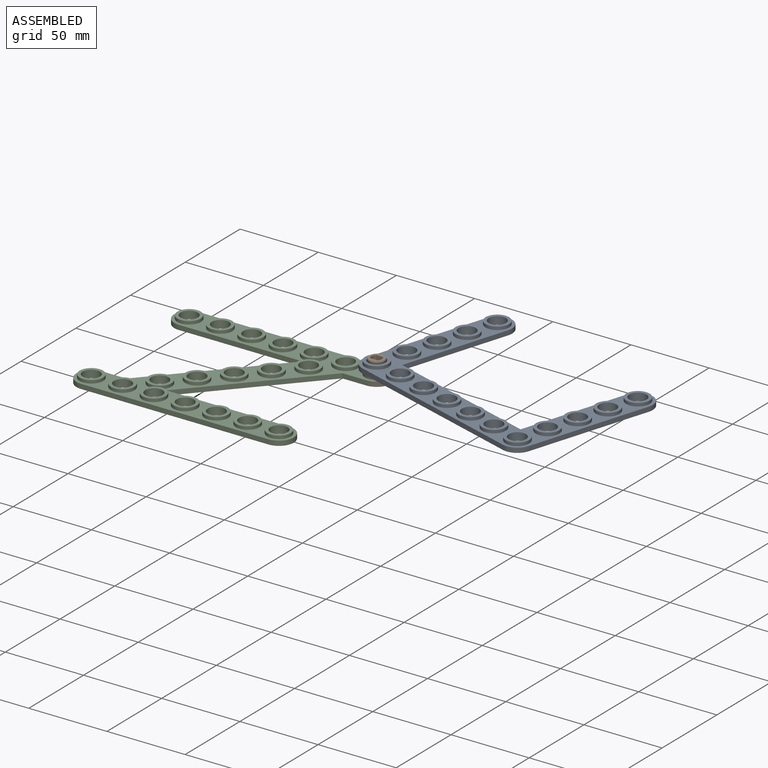
[diagram: assembled view]
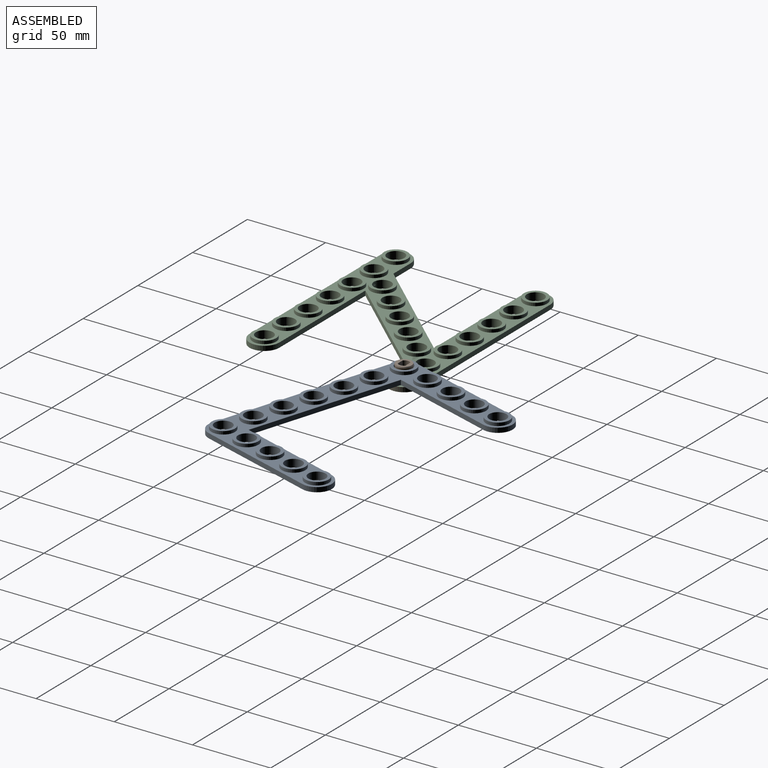
[diagram: assembled view, second angle]
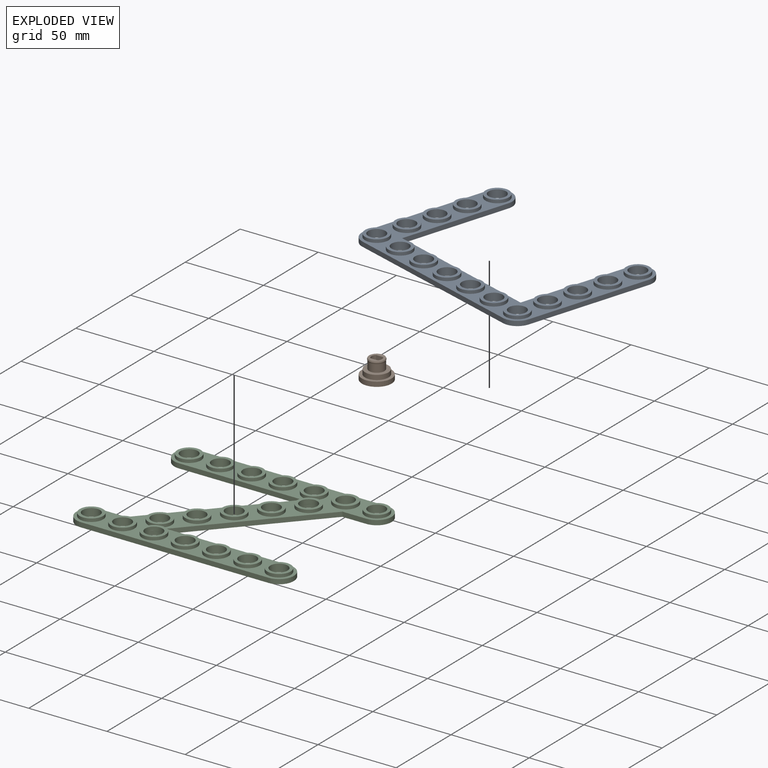
[diagram: exploded view]
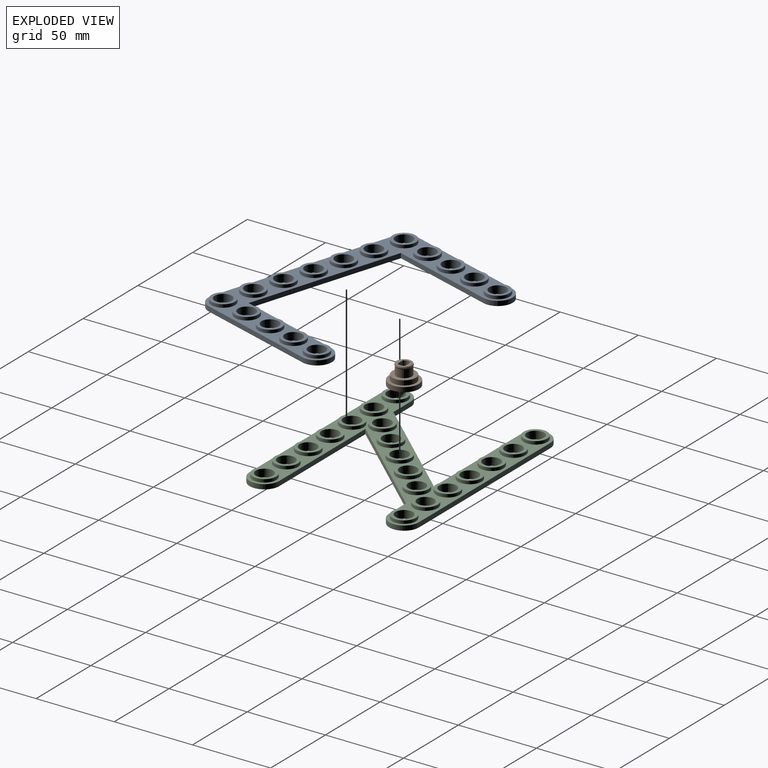
[diagram: exploded view, second angle]
ASSEMBLY  parts=3 mates=2
PART A: 57 faces, bbox 139x99x5 mm
  f0: cylinder r=9.5mm len=9.5mm, axis (0,0,-1), area 44.8mm2, adj f9,f11,f12,f46
  f1: plane 101x3mm, normal (0,1,0), area 303mm2, adj f11,f12,f31,f43
  f2: cylinder r=9.5mm len=9.5mm, axis (0,0,-1), area 44.8mm2, adj f9,f11,f12,f28
  f3: cylinder r=5.5mm len=11mm, axis (0,0,-1), area 172.8mm2, adj f12,f24
  f4: cylinder r=5.5mm len=11mm, axis (0,0,-1), area 172.8mm2, adj f12,f22
  f5: cylinder r=5.5mm len=11mm, axis (0,0,-1), area 172.8mm2, adj f12,f20
  f6: cylinder r=5.5mm len=11mm, axis (0,0,-1), area 172.8mm2, adj f12,f18
  f7: cylinder r=5.5mm len=11mm, axis (0,0,-1), area 172.8mm2, adj f12,f16
  f8: cylinder r=5.5mm len=11mm, axis (0,0,-1), area 172.8mm2, adj f12,f14
  f9: plane 120x3mm, normal (0,-1,0), area 360mm2, adj f0,f2,f11,f12
  f10: cylinder r=5.5mm len=11mm, axis (0,0,-1), area 172.8mm2, adj f12,f26
  f11: plane 139x99mm, normal (0,0,1), area 2914.1mm2, adj f0,f1,f2,f9,f13,f15,f17,f19
  f12: plane 139x99mm, normal (0,0,-1), area 4139.3mm2, adj f0,f1,f2,f3,f4,f5,f6,f7
  f13: cylinder r=7.5mm len=15mm, axis (0,0,-1), area 94.2mm2, adj f11,f14
  f14: plane 15x15mm, normal (0,0,1), area 81.7mm2, adj f8,f13
  f15: cylinder r=7.5mm len=15mm, axis (0,0,-1), area 94.2mm2, adj f11,f16
  f16: plane 15x15mm, normal (0,0,1), area 81.7mm2, adj f7,f15
  f17: cylinder r=7.5mm len=15mm, axis (0,0,-1), area 94.2mm2, adj f11,f18
  f18: plane 15x15mm, normal (0,0,1), area 81.7mm2, adj f6,f17
  f19: cylinder r=7.5mm len=15mm, axis (0,0,-1), area 94.2mm2, adj f11,f20
  f20: plane 15x15mm, normal (0,0,1), area 81.7mm2, adj f5,f19
  f21: cylinder r=7.5mm len=15mm, axis (0,0,-1), area 94.2mm2, adj f11,f22
  f22: plane 15x15mm, normal (0,0,1), area 81.7mm2, adj f4,f21
  f23: cylinder r=7.5mm len=15mm, axis (0,0,-1), area 94.2mm2, adj f11,f24
  f24: plane 15x15mm, normal (0,0,1), area 81.7mm2, adj f3,f23
  f25: cylinder r=7.5mm len=15mm, axis (0,0,-1), area 94.2mm2, adj f11,f26
  f26: plane 15x15mm, normal (0,0,1), area 81.7mm2, adj f10,f25
  f27: cylinder r=9.5mm len=19mm, axis (0,0,-1), area 89.5mm2, adj f11,f12,f28,f31
  f28: plane 80x3mm, normal (-1,0,0), area 240mm2, adj f2,f11,f12,f27
  f29: cylinder r=5.5mm len=11mm, axis (0,0,-1), area 172.8mm2, adj f12,f36
  f30: cylinder r=5.5mm len=11mm, axis (0,0,-1), area 172.8mm2, adj f12,f34
  f31: plane 70.5x3mm, normal (1,0,0), area 211.5mm2, adj f1,f11,f12,f27
  f32: cylinder r=5.5mm len=11mm, axis (0,0,-1), area 172.8mm2, adj f12,f38
  f33: cylinder r=7.5mm len=15mm, axis (0,0,-1), area 94.2mm2, adj f11,f34
  f34: plane 15x15mm, normal (0,0,1), area 81.7mm2, adj f30,f33
  f35: cylinder r=7.5mm len=15mm, axis (0,0,-1), area 94.2mm2, adj f11,f36
  f36: plane 15x15mm, normal (0,0,1), area 81.7mm2, adj f29,f35
  f37: cylinder r=7.5mm len=15mm, axis (0,0,-1), area 94.2mm2, adj f11,f38
  f38: plane 15x15mm, normal (0,0,1), area 81.7mm2, adj f32,f37
  f39: cylinder r=5.5mm len=11mm, axis (0,0,-1), area 172.8mm2, adj f12,f41
  f40: cylinder r=7.5mm len=15mm, axis (0,0,-1), area 94.2mm2, adj f11,f41
  f41: plane 15x15mm, normal (0,0,1), area 81.7mm2, adj f39,f40
  f42: cylinder r=9.5mm len=19mm, axis (0,0,-1), area 89.5mm2, adj f11,f12,f43,f46
  f43: plane 70.5x3mm, normal (-1,0,0), area 211.5mm2, adj f1,f11,f12,f42
  f44: cylinder r=5.5mm len=11mm, axis (0,0,-1), area 172.8mm2, adj f12,f51
  f45: cylinder r=5.5mm len=11mm, axis (0,0,-1), area 172.8mm2, adj f12,f49
  f46: plane 80x3mm, normal (1,0,0), area 240mm2, adj f0,f11,f12,f42
  f47: cylinder r=5.5mm len=11mm, axis (0,0,-1), area 172.8mm2, adj f12,f53
  f48: cylinder r=7.5mm len=15mm, axis (0,0,-1), area 94.2mm2, adj f11,f49
  f49: plane 15x15mm, normal (0,0,1), area 81.7mm2, adj f45,f48
  f50: cylinder r=7.5mm len=15mm, axis (0,0,-1), area 94.2mm2, adj f11,f51
  f51: plane 15x15mm, normal (0,0,1), area 81.7mm2, adj f44,f50
  f52: cylinder r=7.5mm len=15mm, axis (0,0,-1), area 94.2mm2, adj f11,f53
  f53: plane 15x15mm, normal (0,0,1), area 81.7mm2, adj f47,f52
  f54: cylinder r=5.5mm len=11mm, axis (0,0,-1), area 172.8mm2, adj f12,f56
  f55: cylinder r=7.5mm len=15mm, axis (0,0,-1), area 94.2mm2, adj f11,f56
  f56: plane 15x15mm, normal (0,0,1), area 81.7mm2, adj f54,f55
PART B: 13 faces, bbox 19x19x12.5 mm
  f0: cylinder r=3.35mm len=12.5mm, axis (0,0,-1), area 68.7mm2, adj f1,f4,f6,f10
  f1: plane 12.5x4.57mm, normal (0,1,0), area 57.1mm2, adj f0,f2,f6,f10
  f2: cylinder r=3.35mm len=12.5mm, axis (0,0,-1), area 68.7mm2, adj f1,f4,f6,f10
  f3: cylinder r=9.5mm len=19mm, axis (0,0,-1), area 179.1mm2, adj f5,f6
  f4: plane 12.5x4.57mm, normal (0,-1,0), area 57.1mm2, adj f0,f2,f6,f10
  f5: plane 19x19mm, normal (0,0,1), area 106.8mm2, adj f3,f7
  f6: plane 19x19mm, normal (0,0,-1), area 253.9mm2, adj f0,f1,f2,f3,f4
  f7: cylinder r=7.5mm len=15mm, axis (0,0,-1), area 141.4mm2, adj f5,f8
  f8: plane 15x15mm, normal (0,0,1), area 101.3mm2, adj f7,f9
  f9: cylinder r=4.9mm len=9.8mm, axis (0,0,-1), area 153.9mm2, adj f8,f11
  f10: plane 9.8x9.8mm, normal (0,0,1), area 45.8mm2, adj f0,f1,f2,f4,f12
  f11: cone r=5.15mm half-angle=18.4deg, axis (0,0,1), area 25mm2, adj f9,f12
  f12: cone r=4.9mm half-angle=18.4deg, axis (0,0,-1), area 25mm2, adj f10,f11
PART C: 77 faces, bbox 139x108.3x5 mm
  f0: plane 78.66x3mm, normal (0,1,0), area 236mm2, adj f4,f14,f15,f74
  f1: plane 15.77x3mm, normal (0,1,0), area 47.3mm2, adj f6,f14,f15,f73
  f2: cylinder r=5.5mm len=11mm, axis (0,0,-1), area 165.3mm2, adj f15,f21,f75,f76
  f3: plane 2.47x0.14mm, normal (0,0,1), area 0.2mm2, adj f5,f67
  f4: cylinder r=9.5mm len=19mm, axis (0,0,-1), area 89.5mm2, adj f0,f12,f14,f15
  f5: plane 3x2.47mm, normal (0,1,0), area 7.4mm2, adj f3,f15,f67
  f6: cylinder r=9.5mm len=19mm, axis (0,0,-1), area 89.5mm2, adj f1,f12,f14,f15
  f7: cylinder r=5.5mm len=11mm, axis (0,0,-1), area 172.8mm2, adj f15,f27
  f8: cylinder r=5.5mm len=11mm, axis (0,0,-1), area 172.8mm2, adj f15,f25
  f9: cylinder r=5.5mm len=11mm, axis (0,0,-1), area 172.8mm2, adj f15,f23
  f10: cylinder r=5.5mm len=11mm, axis (0,0,-1), area 172.8mm2, adj f15,f19
  f11: cylinder r=5.5mm len=11mm, axis (0,0,-1), area 172.8mm2, adj f15,f17
  f12: plane 120x3mm, normal (0,-1,0), area 360mm2, adj f4,f6,f14,f15
  f13: cylinder r=5.5mm len=11mm, axis (0,0,-1), area 172.8mm2, adj f15,f29
  f14: plane 139x108.3mm, normal (0,0,1), area 3562mm2, adj f0,f1,f4,f6,f12,f16,f18,f20
  f15: plane 139x108.3mm, normal (0,0,-1), area 5123.4mm2, adj f0,f1,f2,f4,f5,f6,f7,f8
  f16: cylinder r=7.5mm len=15mm, axis (0,0,-1), area 94.2mm2, adj f14,f17
  f17: plane 15x15mm, normal (0,0,1), area 81.7mm2, adj f11,f16
  f18: cylinder r=7.5mm len=15mm, axis (0,0,-1), area 94.2mm2, adj f14,f19
  f19: plane 15x15mm, normal (0,0,1), area 81.7mm2, adj f10,f18
  f20: cylinder r=7.5mm len=15mm, axis (0,0,-1), area 94.2mm2, adj f14,f21
  f21: plane 15x15mm, normal (0,0,1), area 81.7mm2, adj f2,f20
  f22: cylinder r=7.5mm len=15mm, axis (0,0,-1), area 94.2mm2, adj f14,f23
  f23: plane 15x15mm, normal (0,0,1), area 81.7mm2, adj f9,f22
  f24: cylinder r=7.5mm len=15mm, axis (0,0,-1), area 94.2mm2, adj f14,f25
  f25: plane 15x15mm, normal (0,0,1), area 81.7mm2, adj f8,f24
  f26: cylinder r=7.5mm len=15mm, axis (0,0,-1), area 94.2mm2, adj f14,f27
  f27: plane 15x15mm, normal (0,0,1), area 81.7mm2, adj f7,f26
  f28: cylinder r=7.5mm len=15mm, axis (0,0,-1), area 94.2mm2, adj f14,f29
  f29: plane 15x15mm, normal (0,0,1), area 81.7mm2, adj f13,f28
  f30: plane 15x15mm, normal (0,0,1), area 81.7mm2, adj f31,f42
  f31: cylinder r=7.5mm len=15mm, axis (0,0,-1), area 94.2mm2, adj f14,f30
  f32: plane 15x15mm, normal (0,0,1), area 81.7mm2, adj f33,f48
  f33: cylinder r=7.5mm len=15mm, axis (0,0,-1), area 94.2mm2, adj f14,f32
  f34: plane 15x15mm, normal (0,0,1), area 81.7mm2, adj f35,f47
  f35: cylinder r=7.5mm len=15mm, axis (0,0,-1), area 94.2mm2, adj f14,f34
  f36: plane 15x15mm, normal (0,0,1), area 81.7mm2, adj f37,f46
  f37: cylinder r=7.5mm len=15mm, axis (0,0,-1), area 94.2mm2, adj f14,f36
  f38: plane 15x15mm, normal (0,0,1), area 81.7mm2, adj f39,f45
  f39: cylinder r=7.5mm len=15mm, axis (0,0,-1), area 94.2mm2, adj f14,f38
  f40: plane 15x15mm, normal (0,0,1), area 81.7mm2, adj f41,f44
  f41: cylinder r=7.5mm len=15mm, axis (0,0,-1), area 94.2mm2, adj f14,f40
  f42: cylinder r=5.5mm len=11mm, axis (0,0,-1), area 172.8mm2, adj f15,f30
  f43: plane 79.1x3mm, normal (0,-1,0), area 237.3mm2, adj f14,f15,f49,f73
  f44: cylinder r=5.5mm len=11mm, axis (0,0,-1), area 172.8mm2, adj f15,f40
  f45: cylinder r=5.5mm len=11mm, axis (0,0,-1), area 172.8mm2, adj f15,f38
  f46: cylinder r=5.5mm len=11mm, axis (0,0,-1), area 172.8mm2, adj f15,f36
  f47: cylinder r=5.5mm len=11mm, axis (0,0,-1), area 172.8mm2, adj f15,f34
  f48: cylinder r=5.5mm len=11mm, axis (0,0,-1), area 172.8mm2, adj f15,f32
  f49: cylinder r=9.5mm len=19mm, axis (0,0,-1), area 89.5mm2, adj f14,f15,f43,f50
  f50: plane 120x3mm, normal (0,1,0), area 360mm2, adj f14,f15,f49,f51
  f51: cylinder r=9.5mm len=19mm, axis (0,0,-1), area 89.5mm2, adj f14,f15,f50,f52
  f52: plane 15.33x3mm, normal (0,-1,0), area 46mm2, adj f14,f15,f51,f74
  f53: cylinder r=5.5mm len=10.45mm, axis (0,0,-1), area 84.7mm2, adj f15,f55,f66
  f54: cylinder r=7.5mm len=14.42mm, axis (0,0,-1), area 47.8mm2, adj f14,f55,f72
  f55: plane 15.32x15.14mm, normal (0,0,1), area 90.6mm2, adj f53,f54,f66,f72
  f56: plane 15x15mm, normal (0,0,1), area 81.7mm2, adj f57,f71
  f57: cylinder r=7.5mm len=15mm, axis (0,0,-1), area 94.2mm2, adj f14,f56
  f58: plane 15x15mm, normal (0,0,1), area 81.7mm2, adj f59,f70
  f59: cylinder r=7.5mm len=15mm, axis (0,0,-1), area 94.2mm2, adj f14,f58
  f60: plane 15x15mm, normal (0,0,1), area 81.7mm2, adj f61,f69
  f61: cylinder r=7.5mm len=15mm, axis (0,0,-1), area 94.2mm2, adj f14,f60
  f62: plane 15x15mm, normal (0,0,1), area 81.7mm2, adj f63,f68
  f63: cylinder r=7.5mm len=15mm, axis (0,0,-1), area 94.2mm2, adj f14,f62
  f64: plane 15x15mm, normal (0,0,1), area 81.7mm2, adj f65,f67
  f65: cylinder r=7.5mm len=15mm, axis (0,0,-1), area 94.2mm2, adj f14,f64
  f66: cylinder r=5.5mm len=10.45mm, axis (0,0,-1), area 84.7mm2, adj f15,f53,f55
  f67: cylinder r=5.5mm len=11mm, axis (0,0,-1), area 165.3mm2, adj f3,f5,f15,f64
  f68: cylinder r=5.5mm len=11mm, axis (0,0,-1), area 172.8mm2, adj f15,f62
  f69: cylinder r=5.5mm len=11mm, axis (0,0,-1), area 172.8mm2, adj f15,f60
  f70: cylinder r=5.5mm len=11mm, axis (0,0,-1), area 172.8mm2, adj f15,f58
  f71: cylinder r=5.5mm len=11mm, axis (0,0,-1), area 172.8mm2, adj f15,f56
  f72: cylinder r=7.5mm len=14.42mm, axis (0,0,-1), area 47.8mm2, adj f14,f54,f55
  f73: plane 70.3x63.33mm, normal (-0.74,0.67,0), area 283.8mm2, adj f1,f14,f15,f43
  f74: plane 70.3x63.33mm, normal (0.74,-0.67,0), area 283.8mm2, adj f0,f14,f15,f52
  f75: plane 1.83x1.65mm, normal (0,0,1), area 0.2mm2, adj f2,f76
  f76: plane 3x1.83mm, normal (0.74,-0.67,0), area 7.4mm2, adj f2,f15,f75
PLACE A rot(axis=(0,0,-1),17.1deg) t=(120,89.3,6)mm
PLACE B rot(axis=(0,0,1),0deg) t=(120,89.3,0)mm
PLACE C at identity fixed
MATE fastened C.f31 <-> B.f0  axis (0,0,-1) through (120,89.3,0)mm
MATE revolute B.f0 <-> A.f8  axis (0,0,1) through (120,89.3,6)mm
